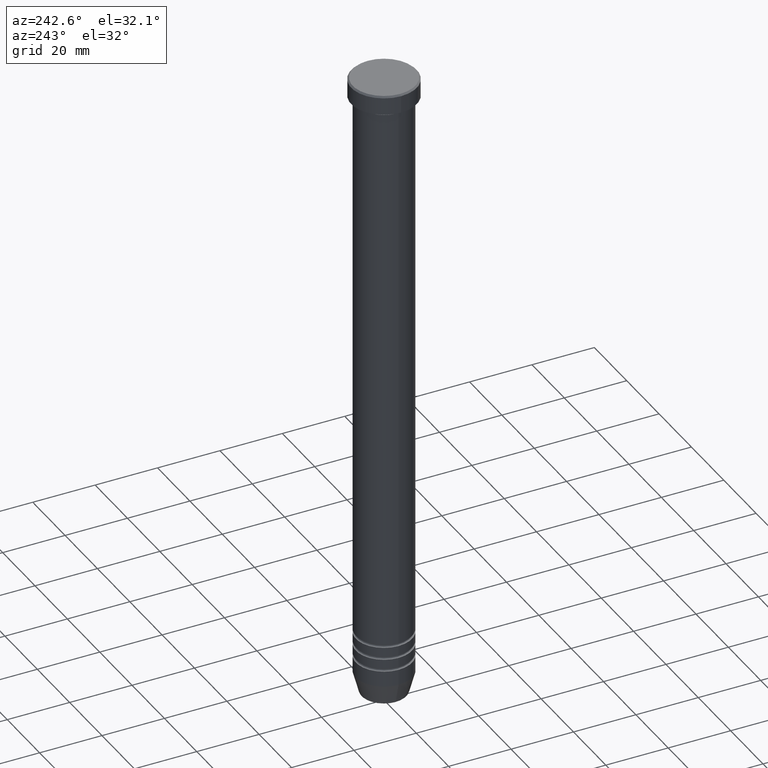
[diagram: clean part render]
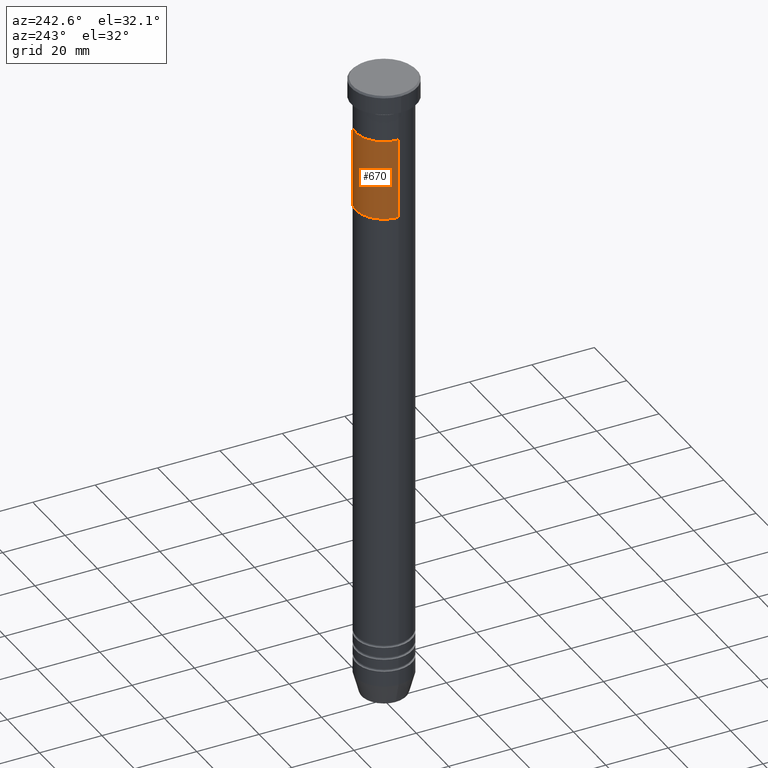
[diagram: same view with one face highlighted and labeled with its STEP entity id]
A machine part, auxiliary view. The second image highlights one B-rep face of the part: STEP entity #670.
In plain terms, the highlighted cylindrical surface (edge-blend (fillet) strip) has radius 9 mm, axis along (-0, -0, 1).
Its self-contained STEP definition (entity closure, byte-faithful):
#9 = CIRCLE ( 'NONE', #754, 9.000000000000000000 ) ;
#35 = FACE_OUTER_BOUND ( 'NONE', #998, .T. ) ;
#116 = VERTEX_POINT ( 'NONE', #866 ) ;
#162 = CYLINDRICAL_SURFACE ( 'NONE', #592, 9.000000000000000000 ) ;
#231 = LINE ( 'NONE', #780, #456 ) ;
#263 = ORIENTED_EDGE ( 'NONE', *, *, #582, .F. ) ;
#297 = ORIENTED_EDGE ( 'NONE', *, *, #804, .F. ) ;
#305 = CARTESIAN_POINT ( 'NONE',  ( 0.000000000000000000, 0.000000000000000000, -16.00000000000000000 ) ) ;
#313 = VERTEX_POINT ( 'NONE', #512 ) ;
#339 = CARTESIAN_POINT ( 'NONE',  ( 0.000000000000000000, 0.000000000000000000, -41.99999999999999289 ) ) ;
#341 = DIRECTION ( 'NONE',  ( -0.000000000000000000, -0.000000000000000000, 1.000000000000000000 ) ) ;
#353 = EDGE_CURVE ( 'NONE', #455, #116, #9, .T. ) ;
#373 = DIRECTION ( 'NONE',  ( 0.000000000000000000, 0.000000000000000000, -1.000000000000000000 ) ) ;
#410 = LINE ( 'NONE', #963, #629 ) ;
#415 = AXIS2_PLACEMENT_3D ( 'NONE', #814, #373, #708 ) ;
#455 = VERTEX_POINT ( 'NONE', #557 ) ;
#456 = VECTOR ( 'NONE', #521, 1000.000000000000000 ) ;
#508 = DIRECTION ( 'NONE',  ( 1.000000000000000000, 0.000000000000000000, 0.000000000000000000 ) ) ;
#512 = CARTESIAN_POINT ( 'NONE',  ( -9.000000000000000000, 1.102182119232617517E-15, -41.99999999999999289 ) ) ;
#521 = DIRECTION ( 'NONE',  ( -0.000000000000000000, -0.000000000000000000, 1.000000000000000000 ) ) ;
#557 = CARTESIAN_POINT ( 'NONE',  ( -9.000000000000000000, 1.102182119232617517E-15, -16.00000000000000000 ) ) ;
#582 = EDGE_CURVE ( 'NONE', #715, #116, #410, .T. ) ;
#592 = AXIS2_PLACEMENT_3D ( 'NONE', #339, #940, #508 ) ;
#605 = CIRCLE ( 'NONE', #415, 9.000000000000000000 ) ;
#613 = ORIENTED_EDGE ( 'NONE', *, *, #353, .T. ) ;
#629 = VECTOR ( 'NONE', #341, 1000.000000000000000 ) ;
#661 = DIRECTION ( 'NONE',  ( 0.000000000000000000, 0.000000000000000000, -1.000000000000000000 ) ) ;
#662 = ORIENTED_EDGE ( 'NONE', *, *, #1074, .T. ) ;
#670 = ADVANCED_FACE ( 'NONE', ( #35 ), #162, .T. ) ;
#708 = DIRECTION ( 'NONE',  ( -1.000000000000000000, 0.000000000000000000, 0.000000000000000000 ) ) ;
#715 = VERTEX_POINT ( 'NONE', #795 ) ;
#754 = AXIS2_PLACEMENT_3D ( 'NONE', #305, #661, #1013 ) ;
#780 = CARTESIAN_POINT ( 'NONE',  ( -9.000000000000000000, 1.102182119232617517E-15, -41.99999999999999289 ) ) ;
#795 = CARTESIAN_POINT ( 'NONE',  ( 9.000000000000000000, 0.000000000000000000, -41.99999999999999289 ) ) ;
#804 = EDGE_CURVE ( 'NONE', #313, #715, #605, .T. ) ;
#814 = CARTESIAN_POINT ( 'NONE',  ( 0.000000000000000000, 0.000000000000000000, -41.99999999999999289 ) ) ;
#866 = CARTESIAN_POINT ( 'NONE',  ( 9.000000000000000000, 0.000000000000000000, -16.00000000000000000 ) ) ;
#940 = DIRECTION ( 'NONE',  ( -0.000000000000000000, -0.000000000000000000, 1.000000000000000000 ) ) ;
#963 = CARTESIAN_POINT ( 'NONE',  ( 9.000000000000000000, 0.000000000000000000, -41.99999999999999289 ) ) ;
#998 = EDGE_LOOP ( 'NONE', ( #297, #662, #613, #263 ) ) ;
#1013 = DIRECTION ( 'NONE',  ( -1.000000000000000000, 0.000000000000000000, 0.000000000000000000 ) ) ;
#1074 = EDGE_CURVE ( 'NONE', #313, #455, #231, .T. ) ;